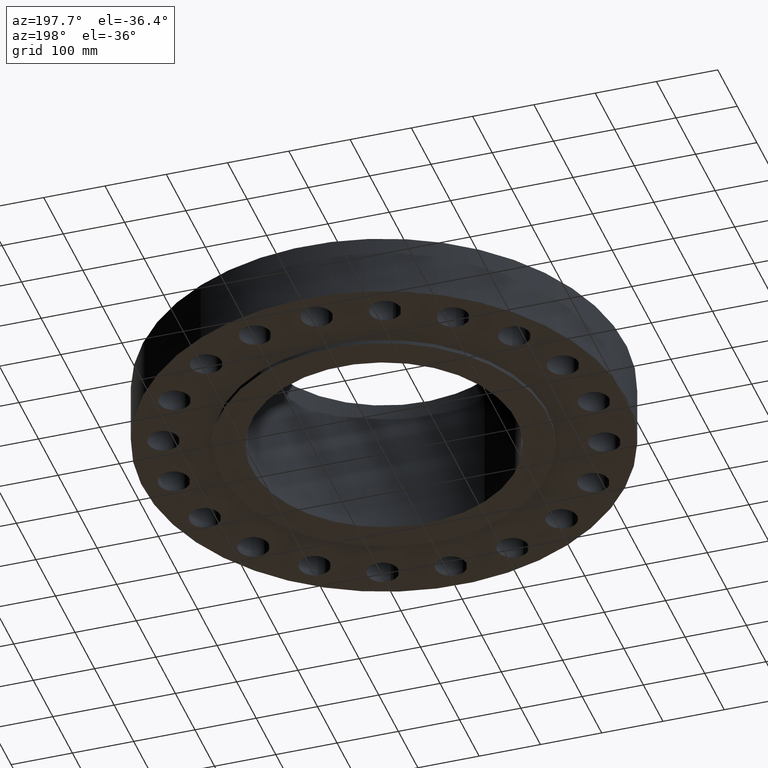
[diagram: clean part render]
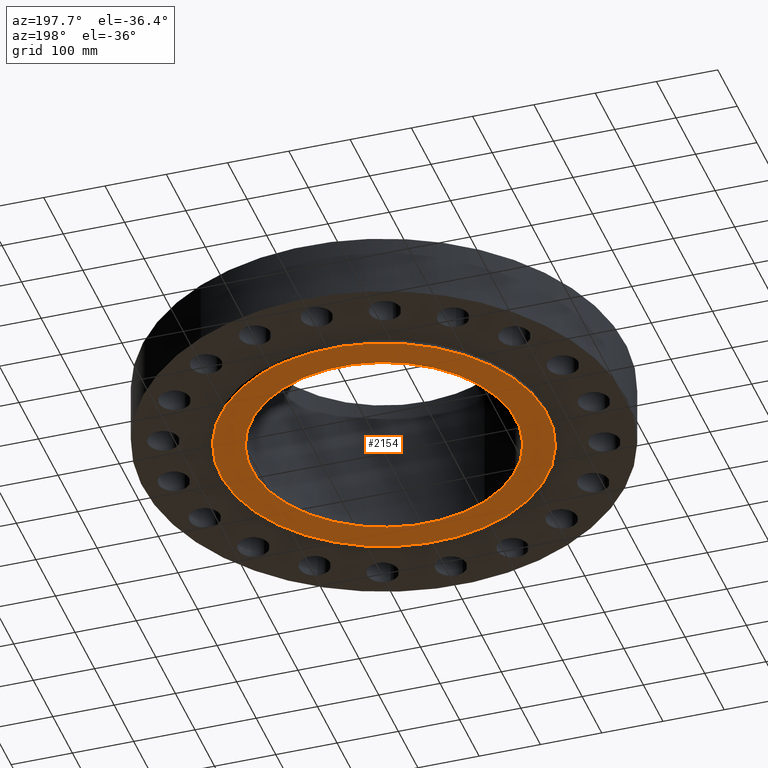
[diagram: same view with one face highlighted and labeled with its STEP entity id]
A machine part, auxiliary view. The second image highlights one B-rep face of the part: STEP entity #2154.
In plain terms, the highlighted planar face has unit normal (0, 0, -1).
Its self-contained STEP definition (entity closure, byte-faithful):
#999=AXIS2_PLACEMENT_3D('Circle Axis2P3D',#997,#998,$) ;
#2130=AXIS2_PLACEMENT_3D('Plane Axis2P3D',#2127,#2128,#2129) ;
#2138=AXIS2_PLACEMENT_3D('Circle Axis2P3D',#2136,#2137,$) ;
#2147=AXIS2_PLACEMENT_3D('Circle Axis2P3D',#2145,#2146,$) ;
#997=CARTESIAN_POINT('Axis2P3D Location',(0.,0.,-0.249999999965)) ;
#1001=CARTESIAN_POINT('Vertex',(5.03396815532,9.21461689984,-0.250000000001)) ;
#1003=CARTESIAN_POINT('Vertex',(-5.03396815532,-9.21461689988,-0.250000000001)) ;
#1036=CARTESIAN_POINT('Control Point',(-5.03396815535,-9.21461689985,-0.250000000001)) ;
#1037=CARTESIAN_POINT('Control Point',(-5.7576824743,-8.81924996547,-0.25)) ;
#1038=CARTESIAN_POINT('Control Point',(-6.44258173524,-8.35283254397,-0.249999999999)) ;
#1039=CARTESIAN_POINT('Control Point',(-7.07936214492,-7.82044132668,-0.249999999998)) ;
#1040=CARTESIAN_POINT('Control Point',(-8.24011165114,-6.63756795279,-0.249999999997)) ;
#1041=CARTESIAN_POINT('Control Point',(-9.14866002962,-5.25154173413,-0.249999999995)) ;
#1042=CARTESIAN_POINT('Control Point',(-9.53323111842,-4.51599107235,-0.249999999994)) ;
#1043=CARTESIAN_POINT('Control Point',(-10.1529577868,-2.97895896751,-0.249999999992)) ;
#1044=CARTESIAN_POINT('Control Point',(-10.4619377673,-1.35075130062,-0.24999999999)) ;
#1045=CARTESIAN_POINT('Control Point',(-10.5357520731,-0.524022114821,-0.249999999989)) ;
#1046=CARTESIAN_POINT('Control Point',(-10.5201081363,1.13316951625,-0.249999999988)) ;
#1047=CARTESIAN_POINT('Control Point',(-10.1824803176,2.75567877382,-0.249999999986)) ;
#1048=CARTESIAN_POINT('Control Point',(-9.93430028149,3.54772445942,-0.249999999985)) ;
#1049=CARTESIAN_POINT('Control Point',(-9.28566738697,5.07278321336,-0.249999999983)) ;
#1050=CARTESIAN_POINT('Control Point',(-8.35283254397,6.44258173524,-0.249999999981)) ;
#1051=CARTESIAN_POINT('Control Point',(-7.82044132668,7.07936214491,-0.24999999998)) ;
#1052=CARTESIAN_POINT('Control Point',(-6.63756795279,8.24011165113,-0.249999999979)) ;
#1053=CARTESIAN_POINT('Control Point',(-5.25154173414,9.14866002961,-0.249999999977)) ;
#1054=CARTESIAN_POINT('Control Point',(-4.51599107236,9.53323111842,-0.249999999976)) ;
#1055=CARTESIAN_POINT('Control Point',(-2.97895896751,10.1529577868,-0.249999999974)) ;
#1056=CARTESIAN_POINT('Control Point',(-1.35075130063,10.4619377673,-0.249999999972)) ;
#1057=CARTESIAN_POINT('Control Point',(-0.524022114826,10.5357520731,-0.249999999972)) ;
#1058=CARTESIAN_POINT('Control Point',(1.13316951624,10.5201081363,-0.24999999997)) ;
#1059=CARTESIAN_POINT('Control Point',(2.75567877382,10.1824803176,-0.249999999968)) ;
#1060=CARTESIAN_POINT('Control Point',(3.54772445941,9.9343002815,-0.249999999967)) ;
#1061=CARTESIAN_POINT('Control Point',(4.31025383638,9.60998383423,-0.249999999966)) ;
#1062=CARTESIAN_POINT('Control Point',(5.03396815534,9.21461689985,-0.249999999965)) ;
#2127=CARTESIAN_POINT('Axis2P3D Location',(0.,8.50000000003,-0.250000000001)) ;
#2136=CARTESIAN_POINT('Axis2P3D Location',(1.28110295775E-011,-2.83321922353E-011,-0.250000000001)) ;
#2140=CARTESIAN_POINT('Vertex',(4.07511707813,7.45945177607,-0.250000000001)) ;
#2142=CARTESIAN_POINT('Vertex',(-4.07511707815,-7.45945177609,-0.249999999965)) ;
#2145=CARTESIAN_POINT('Axis2P3D Location',(-4.36642498186E-011,2.52214697071E-012,-0.250000000001)) ;
#998=DIRECTION('Axis2P3D Direction',(0.,0.,-0.0393700787402)) ;
#2128=DIRECTION('Axis2P3D Direction',(0.,0.,-0.0393700787402)) ;
#2129=DIRECTION('Axis2P3D XDirection',(0.0393700787402,0.,0.)) ;
#2137=DIRECTION('Axis2P3D Direction',(0.,0.,-0.0393700787402)) ;
#2146=DIRECTION('Axis2P3D Direction',(0.,0.,-0.0393700787402)) ;
#2133=ORIENTED_EDGE('',*,*,#1063,.T.) ;
#2134=ORIENTED_EDGE('',*,*,#1005,.T.) ;
#2151=ORIENTED_EDGE('',*,*,#2144,.F.) ;
#2152=ORIENTED_EDGE('',*,*,#2149,.F.) ;
#2153=FACE_BOUND('',#2150,.T.) ;
#2154=ADVANCED_FACE('PartBody',(#2135,#2153),#2131,.T.) ;
#1035=B_SPLINE_CURVE_WITH_KNOTS('',5,(#1036,#1037,#1038,#1039,#1040,#1041,#1042,#1043,#1044,#1045,#1046,#1047,#1048,#1049,#1050,#1051,#1052,#1053,#1054,#1055,#1056,#1057,#1058,#1059,#1060,#1061,#1062),.UNSPECIFIED.,.F.,.U.,(6,3,3,3,3,3,3,3,6),(-418.931380356,-314.198535267,-209.465690178,-104.732845089,0.,104.732845089,209.465690178,314.198535267,418.931380356),.UNSPECIFIED.) ;
#1000=CIRCLE('generated circle',#999,10.5) ;
#2139=CIRCLE('generated circle',#2138,8.50000000002) ;
#2148=CIRCLE('generated circle',#2147,8.50000000002) ;
#1005=EDGE_CURVE('',#1002,#1004,#1000,.T.) ;
#1063=EDGE_CURVE('',#1004,#1002,#1035,.T.) ;
#2144=EDGE_CURVE('',#2141,#2143,#2139,.T.) ;
#2149=EDGE_CURVE('',#2143,#2141,#2148,.T.) ;
#2132=EDGE_LOOP('',(#2133,#2134)) ;
#2150=EDGE_LOOP('',(#2151,#2152)) ;
#2135=FACE_OUTER_BOUND('',#2132,.T.) ;
#2131=PLANE('',#2130) ;
#1002=VERTEX_POINT('',#1001) ;
#1004=VERTEX_POINT('',#1003) ;
#2141=VERTEX_POINT('',#2140) ;
#2143=VERTEX_POINT('',#2142) ;